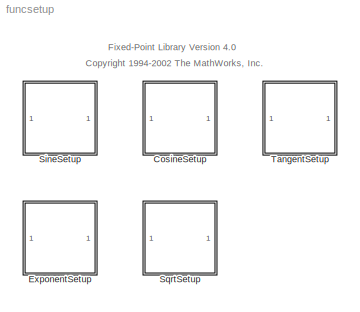
MODEL funcsetup
KIND library
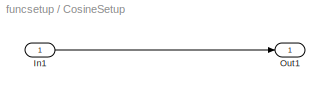
BLOCK [SubSystem] CosineSetup
  MaskCallbackString = |||||||||||||||||||||||
  MaskDescription = MEGMA CosineSetup
  MaskDisplay = disp('CosineSetup')\npatch([2 2 10 10 4 4 8 8 4 4 2 ],[2 10 10 8 8 6 6 4 4 2 2 ],[0 0 0],'bottom-right');
  MaskEnableString = on,on,on,on,on,on,on,on,on,on,on,on,on,on,on,on,on,on,on,on,on,on,on,on
  MaskHelp = web(fpbhelp('cosinesetup'));
  MaskIconFrame = on
  MaskIconOpaque = on
  MaskIconRotate = none
  MaskIconUnits = normalized
  MaskInitialization = FuncStr = 'cos(x)';\n par = get_param(gcb,'parent');\nRecompute = get_param(par,'Recompute');\nif strcmp(Recompute,'Cache across different MATLAB sessions')\nRecompute = 3;\nend\nif Recompute == 3\n  if ~isequal(Spacing, Spacing_nonvisible) | ~isequal(Nptsmax,Nptsmax_nonvisible) ...\n	|~isequal(ErrMax,ErrMax_nonvisible) | ~isequal(xmin,xMin_nonvisible) ...\n	| ~isequal(xmax,xMax_nonvisible) | ~ise...<+1659ch>
  MaskPromptString = ||||||||||||||Allowed spacing 'pow2','even', or 'unrestricted'(default) |Maximum number of breakpoints|Maximum worst case approximation error|Rounding method 'floor'(default),'ceil','near' or 'zero'|Output Scaling|Input Scaling|Output Datatype|Input Datatype|Maximum input value of interest|Minimum input value of interest  <repeated x5 — deduplicated; at blocks: CosineSetup, ExponentSetup, SineSetup, SqrtSetup, TangentSetup>
  MaskSelfModifiable = on
  MaskStyleString = edit,edit,edit,edit,edit,edit,edit,edit,edit,edit,edit,edit,edit,edit,edit,edit,edit,edit,edit,edit,edit,edit,edit,edit
  MaskToolTipString = on,on,on,on,on,on,on,on,on,on,on,on,on,on,on,on,on,on,on,on,on,on,on,on
  MaskTunableValueString = on,on,on,on,on,on,on,on,on,on,on,on,on,on,on,on,on,on,on,on,on,on,on,on
  MaskType = MEGMA CosineSetup
  MaskValueString = yData|xData|yData_nonvisible|xData_nonvisible|Spacing_nonvisible|Nptsmax_nonvisible|ErrMax_nonvisible|RndMeth_nonvisible|yScale_nonvisible|yDt_nonvisible|xScale_nonvisible|xDt_nonvisible|xMax_nonvisible|xMin_nonvisible|Spacing|Nptsmax|ErrMax|RndMeth|yScale|xScale|yDt|xDt|xmax|xmin  <repeated x5 — deduplicated; at blocks: CosineSetup, ExponentSetup, SineSetup, SqrtSetup, TangentSetup>
  MaskVarAliasString = ,,,,,,,,,,,,,,,,,,,,,,,
  MaskVariables = yData=@1;xData=@2;yData_nonvisible=@3;xData_nonvisible=@4;Spacing_nonvisible=@5;Nptsmax_nonvisible=@6;ErrMax_nonvisible=@7;RndMeth_nonvisible=@8;yScale_nonvisible=@9;yDt_nonvisible=@10;xScale_nonvisible=@11;xDt_nonvisible=@12;xMax_nonvisible=@13;xMin_nonvisible=@14;Spacing=@15;Nptsmax=@16;ErrMax=@17;RndMeth=@18;yScale=@19;xScale=@20;yDt=@21;xDt=@22;xmax=@23;xmin=@24;  <repeated x5 — deduplicated; at blocks: CosineSetup, ExponentSetup, SineSetup, SqrtSetup, TangentSetup>
  MaskVisibilityString = off,off,off,off,off,off,off,off,off,off,off,off,off,off,off,off,off,off,off,off,off,off,off,off
  Ports = [1, 1]
  TreatAsAtomicUnit = off
BLOCK [Inport] CosineSetup/In1
BLOCK [Outport] CosineSetup/Out1
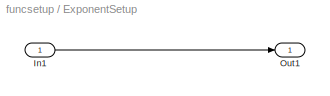
BLOCK [SubSystem] ExponentSetup
  MaskCallbackString = |||||||||||||||||||||||
  MaskDescription = MEGMA ExponentSetup
  MaskDisplay = disp('ExponentSetup')\npatch([2 2 10 10 4 4 8 8 4 4 2 ],[2 10 10 8 8 6 6 4 4 2 2 ],[0 0 0],'bottom-right');
  MaskEnableString = on,on,on,on,on,on,on,on,on,on,on,on,on,on,on,on,on,on,on,on,on,on,on,on
  MaskHelp = web(fpbhelp('exponentsetup'));
  MaskIconFrame = on
  MaskIconOpaque = on
  MaskIconRotate = none
  MaskIconUnits = normalized
  MaskInitialization = FuncStr = 'exp(x)';\n par = get_param(gcb,'parent');\nRecompute = get_param(par,'Recompute');\nif strcmp(Recompute,'Cache across different MATLAB sessions')\nRecompute = 3;\nend\nif Recompute == 3\n  if ~isequal(Spacing, Spacing_nonvisible) | ~isequal(Nptsmax,Nptsmax_nonvisible) ...\n	|~isequal(ErrMax,ErrMax_nonvisible) | ~isequal(xmin,xMin_nonvisible) ...\n	| ~isequal(xmax,xMax_nonvisible) | ~ise...<+1659ch>
  MaskSelfModifiable = on
  MaskStyleString = edit,edit,edit,edit,edit,edit,edit,edit,edit,edit,edit,edit,edit,edit,edit,edit,edit,edit,edit,edit,edit,edit,edit,edit
  MaskToolTipString = on,on,on,on,on,on,on,on,on,on,on,on,on,on,on,on,on,on,on,on,on,on,on,on
  MaskTunableValueString = on,on,on,on,on,on,on,on,on,on,on,on,on,on,on,on,on,on,on,on,on,on,on,on
  MaskType = MEGMA ExponentSetup
  MaskVarAliasString = ,,,,,,,,,,,,,,,,,,,,,,,
  MaskVisibilityString = off,off,off,off,off,off,off,off,off,off,off,off,off,off,off,off,off,off,off,off,off,off,off,off
  Ports = [1, 1]
  TreatAsAtomicUnit = off
BLOCK [Inport] ExponentSetup/In1
BLOCK [Outport] ExponentSetup/Out1
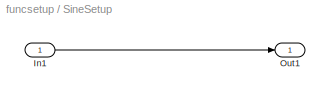
BLOCK [SubSystem] SineSetup
  MaskCallbackString = |||||||||||||||||||||||
  MaskDescription = MEGMA SineSetup
  MaskDisplay = disp('SineSetup')\npatch([2 2 10 10 4 4 8 8 4 4 2 ],[2 10 10 8 8 6 6 4 4 2 2 ],[0 0 0],'bottom-right');
  MaskEnableString = on,on,on,on,on,on,on,on,on,on,on,on,on,on,on,on,on,on,on,on,on,on,on,on
  MaskHelp = web(fpbhelp('sinesetup'));
  MaskIconFrame = on
  MaskIconOpaque = on
  MaskIconRotate = none
  MaskIconUnits = normalized
  MaskInitialization = FuncStr = 'sin(x)';\n par = get_param(gcb,'parent');\nRecompute  = get_param(par,'Recompute');\nif strcmp(Recompute,'Cache across different MATLAB sessions')\nRecompute = 3;\nend\nif Recompute == 3\n  if ~isequal(Spacing, Spacing_nonvisible) | ~isequal(Nptsmax,Nptsmax_nonvisible) ...\n	|~isequal(ErrMax,ErrMax_nonvisible) | ~isequal(xmin,xMin_nonvisible) ...\n	| ~isequal(xmax,xMax_nonvisible) | ~is...<+1660ch>
  MaskSelfModifiable = on
  MaskStyleString = edit,edit,edit,edit,edit,edit,edit,edit,edit,edit,edit,edit,edit,edit,edit,edit,edit,edit,edit,edit,edit,edit,edit,edit
  MaskToolTipString = on,on,on,on,on,on,on,on,on,on,on,on,on,on,on,on,on,on,on,on,on,on,on,on
  MaskTunableValueString = on,on,on,on,on,on,on,on,on,on,on,on,on,on,on,on,on,on,on,on,on,on,on,on
  MaskType = MEGMA SineSetup
  MaskVarAliasString = ,,,,,,,,,,,,,,,,,,,,,,,
  MaskVisibilityString = off,off,off,off,off,off,off,off,off,off,off,off,off,off,off,off,off,off,off,off,off,off,off,off
  Ports = [1, 1]
  TreatAsAtomicUnit = off
BLOCK [Inport] SineSetup/In1
BLOCK [Outport] SineSetup/Out1
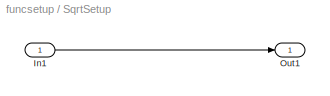
BLOCK [SubSystem] SqrtSetup
  MaskCallbackString = |||||||||||||||||||||||
  MaskDescription = MEGMA SqrtSetup
  MaskDisplay = disp('SqrtSetup')\npatch([2 2 10 10 4 4 8 8 4 4 2 ],[2 10 10 8 8 6 6 4 4 2 2 ],[0 0 0],'bottom-right');
  MaskEnableString = on,on,on,on,on,on,on,on,on,on,on,on,on,on,on,on,on,on,on,on,on,on,on,on
  MaskHelp = web(fpbhelp('sqrtsetup'));
  MaskIconFrame = on
  MaskIconOpaque = on
  MaskIconRotate = none
  MaskIconUnits = normalized
  MaskInitialization = FuncStr = 'sqrt(x)';\n par = get_param(gcb,'parent');\nRecompute = get_param(par,'Recompute');\nif strcmp(Recompute,'Cache across different MATLAB sessions')\nRecompute = 3;\nend\nif Recompute == 3\n  if ~isequal(Spacing, Spacing_nonvisible) | ~isequal(Nptsmax,Nptsmax_nonvisible) ...\n	|~isequal(ErrMax,ErrMax_nonvisible) | ~isequal(xmin,xMin_nonvisible) ...\n	| ~isequal(xmax,xMax_nonvisible) | ~is...<+1660ch>
  MaskSelfModifiable = on
  MaskStyleString = edit,edit,edit,edit,edit,edit,edit,edit,edit,edit,edit,edit,edit,edit,edit,edit,edit,edit,edit,edit,edit,edit,edit,edit
  MaskToolTipString = on,on,on,on,on,on,on,on,on,on,on,on,on,on,on,on,on,on,on,on,on,on,on,on
  MaskTunableValueString = on,on,on,on,on,on,on,on,on,on,on,on,on,on,on,on,on,on,on,on,on,on,on,on
  MaskType = MEGMA SqrtSetup
  MaskVarAliasString = ,,,,,,,,,,,,,,,,,,,,,,,
  MaskVisibilityString = off,off,off,off,off,off,off,off,off,off,off,off,off,off,off,off,off,off,off,off,off,off,off,off
  Ports = [1, 1]
  TreatAsAtomicUnit = off
BLOCK [Inport] SqrtSetup/In1
BLOCK [Outport] SqrtSetup/Out1
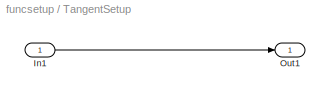
BLOCK [SubSystem] TangentSetup
  MaskCallbackString = |||||||||||||||||||||||
  MaskDescription = MEGMA TangentSetup
  MaskDisplay = disp('TangentSetup')\npatch([2 2 10 10 4 4 8 8 4 4 2 ],[2 10 10 8 8 6 6 4 4 2 2 ],[0 0 0],'bottom-right');
  MaskEnableString = on,on,on,on,on,on,on,on,on,on,on,on,on,on,on,on,on,on,on,on,on,on,on,on
  MaskHelp = web(fpbhelp('tangentsetup'));
  MaskIconFrame = on
  MaskIconOpaque = on
  MaskIconRotate = none
  MaskIconUnits = normalized
  MaskInitialization = FuncStr = 'tan(x)';\n par = get_param(gcb,'parent');\nRecompute = get_param(par,'Recompute');\nif strcmp(Recompute,'Cache across different MATLAB sessions')\nRecompute = 3;\nend\nif Recompute == 3\n  if ~isequal(Spacing, Spacing_nonvisible) | ~isequal(Nptsmax,Nptsmax_nonvisible) ...\n	|~isequal(ErrMax,ErrMax_nonvisible) | ~isequal(xmin,xMin_nonvisible) ...\n	| ~isequal(xmax,xMax_nonvisible) | ~ise...<+1659ch>
  MaskSelfModifiable = on
  MaskStyleString = edit,edit,edit,edit,edit,edit,edit,edit,edit,edit,edit,edit,edit,edit,edit,edit,edit,edit,edit,edit,edit,edit,edit,edit
  MaskToolTipString = on,on,on,on,on,on,on,on,on,on,on,on,on,on,on,on,on,on,on,on,on,on,on,on
  MaskTunableValueString = on,on,on,on,on,on,on,on,on,on,on,on,on,on,on,on,on,on,on,on,on,on,on,on
  MaskType = MEGMA TangentSetup
  MaskVarAliasString = ,,,,,,,,,,,,,,,,,,,,,,,
  MaskVisibilityString = off,off,off,off,off,off,off,off,off,off,off,off,off,off,off,off,off,off,off,off,off,off,off,off
  Ports = [1, 1]
  TreatAsAtomicUnit = off
BLOCK [Inport] TangentSetup/In1
BLOCK [Outport] TangentSetup/Out1
ANNOTATION (root): <copyright redacted>
ANNOTATION (root): Fixed-Point Library Version 4.0
LINE CosineSetup/In1:1 -> CosineSetup/Out1:1
LINE ExponentSetup/In1:1 -> ExponentSetup/Out1:1
LINE SineSetup/In1:1 -> SineSetup/Out1:1
LINE SqrtSetup/In1:1 -> SqrtSetup/Out1:1
LINE TangentSetup/In1:1 -> TangentSetup/Out1:1
